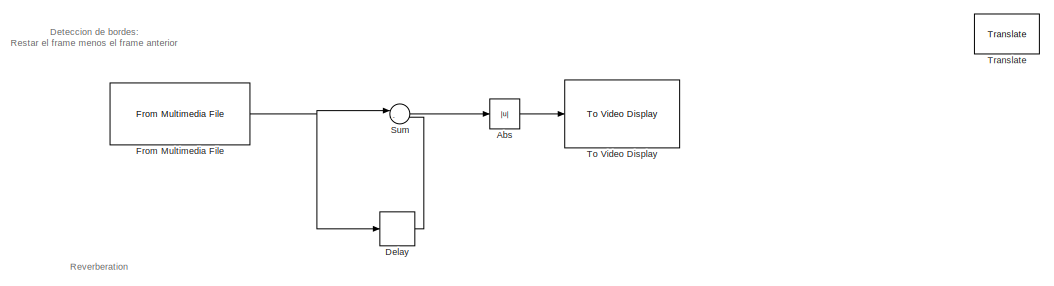
[diagram: root canvas - part 1/2, top center region]
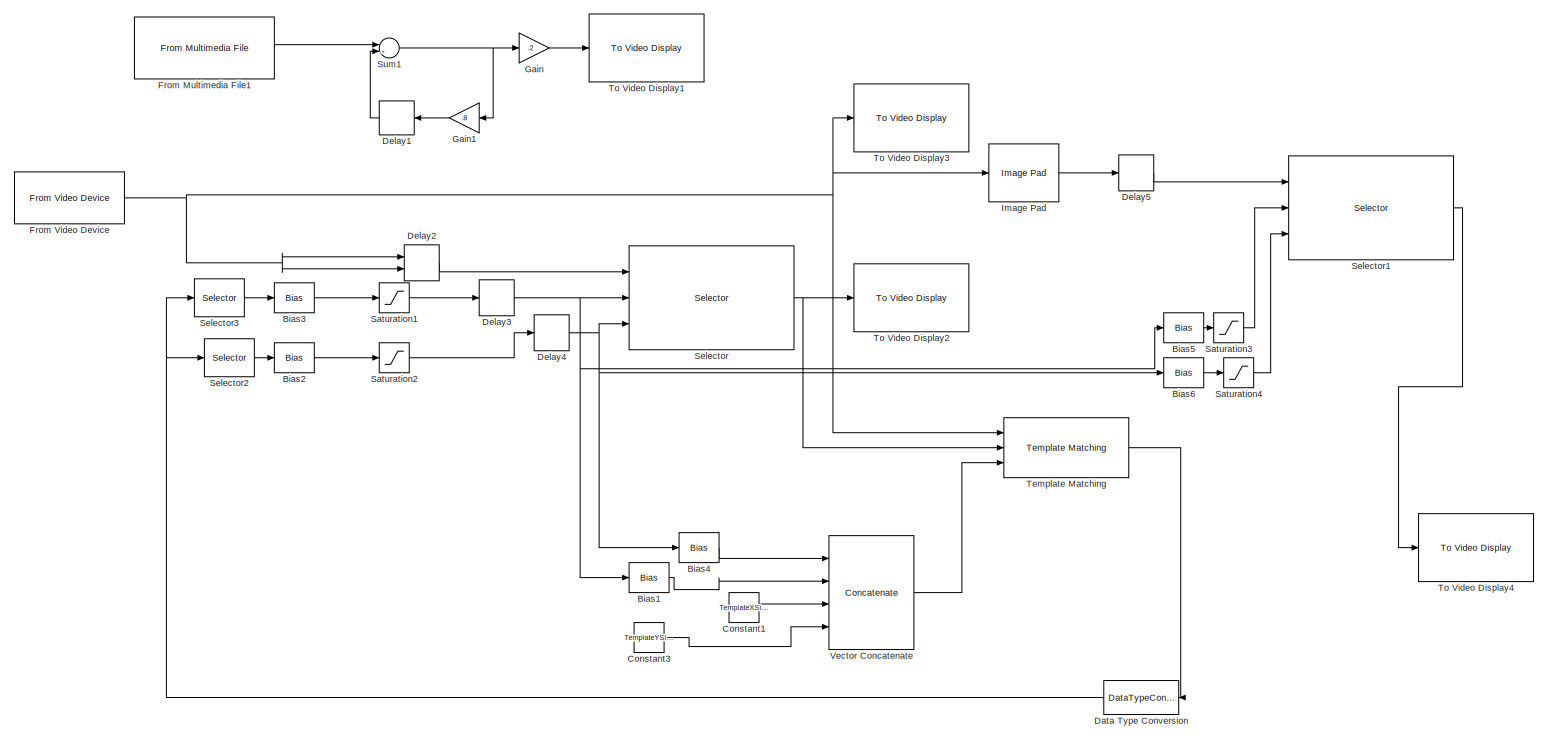
[diagram: root canvas - part 2/2, full width, middle band]
MODEL slx_bb39cacca3c3
KIND model
CONFIG InitFcn = webcam
BLOCK [Abs] Abs
  Commented = on
  SaturateOnIntegerOverflow = off
BLOCK [Bias] Bias1
  Bias = -SearchEx/2
  SaturateOnIntegerOverflow = off
BLOCK [Bias] Bias2
  Bias = -TemplateXSize/2+1
BLOCK [Bias] Bias3
  Bias = -TemplateYSize/2+1
  SaturateOnIntegerOverflow = off
BLOCK [Bias] Bias4
  Bias = -SearchEx/2
  SaturateOnIntegerOverflow = off
BLOCK [Bias] Bias5
  SaturateOnIntegerOverflow = off
BLOCK [Bias] Bias6
  SaturateOnIntegerOverflow = off
BLOCK [Constant] Constant1
  Value = TemplateXSize+SearchEx
BLOCK [Constant] Constant3
  Value = TemplateYSize+SearchEx
BLOCK [DataTypeConversion] Data Type Conversion
  RndMeth = Floor
  SaturateOnIntegerOverflow = off
BLOCK [Delay] Delay
  Commented = on
  DelayLength = 1
  InitialCondition = 0
  InputPortMap = u0
  Ports = [1, 1]
BLOCK [Delay] Delay1
  Commented = on
  DelayLength = 1
  InitialCondition = 0
  InputPortMap = u0
  Ports = [1, 1]
BLOCK [Delay] Delay2
  DelayLength = 1
  InitialCondition = 0
  InitialConditionSource = Input port
  InputPortMap = u0,p4
  Ports = [2, 1]
BLOCK [Delay] Delay3
  DelayLength = 1
  InitialCondition = PosYIn
  InputPortMap = u0
  Ports = [1, 1]
BLOCK [Delay] Delay4
  DelayLength = 1
  InitialCondition = PosXIn
  InputPortMap = u0
  Ports = [1, 1]
BLOCK [Delay] Delay5
  DelayLength = 1
  InitialCondition = 0
  InputPortMap = u0
  Ports = [1, 1]
BLOCK [Reference] From Multimedia File  REF=dspvision/From Multimedia File
  Commented = on
  Ports = [0, 1]
  SourceBlock = dspvision/From Multimedia File
  SourceType = From Multimedia File
  audioDataType = int16
  audioFrameSize = 1024
  colorVideoFormat = One multidimensional signal
  computeAudioFrameSize = off
  dataOrg = Column-major
  fourcc = Intensity
  inheritSampleTime = on
  inputFilename = <path>
  isIntensityVideo = off
  loop = on
  noAudioOutput = off
  numPlays = inf
  outSamplingMode = Sample based
  outputEOF = off
  outputStreams = Video only
  userDefinedSampleTime = 1/30
  videoDataType = single
BLOCK [Reference] From Multimedia File1  REF=dspvision/From Multimedia File
  Commented = on
  Ports = [0, 1]
  SourceBlock = dspvision/From Multimedia File
  SourceType = From Multimedia File
  audioDataType = int16
  audioFrameSize = 1024
  colorVideoFormat = One multidimensional signal
  computeAudioFrameSize = off
  dataOrg = Column-major
  fourcc = Intensity
  inheritSampleTime = on
  inputFilename = <path>
  isIntensityVideo = off
  loop = on
  noAudioOutput = off
  numPlays = inf
  outSamplingMode = Sample based
  outputEOF = off
  outputStreams = Video only
  userDefinedSampleTime = 1/30
  videoDataType = single
BLOCK [Reference] From Video Device  REF=imaqlib/From Video Device
  AllMetadata = IsPositionTracked;IsSkeletonTracked;JointDepthIndices;JointImageIndices;JointTrackingState;JointWorldCoordinates;PositionDepthIndices;PositionImageIndices;PositionWorldCoordinates;SegmentationData;SkeletonTrackingID
  BayerSensorAlignment = grbg
  BlockHandle = 1921.0006
  CanDoHWTrigger = no
  DataType = single
  DevXMLPath = <path>
  Device = winvideo 1 (Integrated Webcam)
  DeviceMenu = winvideo 1 (Integrated Webcam)
  EnableHWTrigger = off
  EngLibPath = C:\Program Files (x86)\MATLAB\R2014b\toolbox\imaq\imaqblks\imaqmex\win32
  EngXMLPath = C:\Program Files (x86)\MATLAB\R2014b\toolbox\imaq\imaq\private
  ObjConstructor = videoinput('winvideo', 1)
  OutputPortsMode = One multidimensional signal
  Ports = [0, 1]
  ROIColumn = 0
  ROIHeight = 480
  ROIPosition = [0 0 480 640]
  ROIRow = 0
  ROIWidth = 640
  ReturnedColorSpace = grayscale
  SampleTime = 1/30
  SourceBlock = imaqlib/From Video Device
  SourceType = From Video Device
  TriggerConfiguration = none/none
  UserDataPersistent = on
  VideoFormat = YUY2_640x480
  VideoFormatMenu = YUY2_640x480
  VideoSource = input1
BLOCK [Gain] Gain
  Commented = on
  Gain = .2
  OutDataTypeStr = Inherit: Inherit via internal rule
  ParamDataTypeStr = Inherit: Inherit via internal rule
  SaturateOnIntegerOverflow = off
BLOCK [Gain] Gain1
  Commented = on
  Gain = .8
  OutDataTypeStr = Inherit: Inherit via internal rule
  ParamDataTypeStr = Inherit: Inherit via internal rule
  SaturateOnIntegerOverflow = off
BLOCK [Reference] Image Pad  REF=visionutilities/Image Pad
  Ports = [1, 1]
  SourceBlock = visionutilities/Image Pad
  SourceType = Image Pad
  colDirection = Both top and bottom
  colSize = 200
  method = Constant
  outColSize = 10
  outColsMode = User-specified
  outRowSize = 12
  outRowsMode = User-specified
  rowDirection = Both left and right
  rowSize = 200
  spec = Pad size
  trunc_flag = None
  valSrc = Specify via dialog
  value = 0.5
BLOCK [Saturate] Saturation1
  InputPortMap = u0
  LowerLimit = 1
  Ports = [1, 1]
  UpperLimit = 429
BLOCK [Saturate] Saturation2
  InputPortMap = u0
  LowerLimit = 1
  Ports = [1, 1]
  UpperLimit = 589
BLOCK [Saturate] Saturation3
  InputPortMap = u0
  LowerLimit = 1
  Ports = [1, 1]
  UpperLimit = 300
BLOCK [Saturate] Saturation4
  InputPortMap = u0
  LowerLimit = 1
  Ports = [1, 1]
  UpperLimit = 400
BLOCK [Selector] Selector
  IndexOptions = Starting index (port),Starting index (port)
  Indices = [1 3],1
  InputPortWidth = 3
  NumberOfDimensions = 2
  OutputSizes = TemplateYSize,TemplateXSize
  Ports = [3, 1]
BLOCK [Selector] Selector1
  IndexOptions = Starting index (port),Starting index (port)
  Indices = [1 3],1
  InputPortWidth = 3
  NumberOfDimensions = 2
  OutputSizes = 300,500
  Ports = [3, 1]
BLOCK [Selector] Selector2
  Indices = [1]
  InputPortWidth = 2
  Ports = [1, 1]
BLOCK [Selector] Selector3
  Indices = [2]
  InputPortWidth = 2
  Ports = [1, 1]
BLOCK [Sum] Sum
  Commented = on
  IconShape = round
  InputSameDT = off
  Inputs = |-+
  OutDataTypeStr = Inherit: Inherit via internal rule
  Ports = [2, 1]
  SaturateOnIntegerOverflow = off
BLOCK [Sum] Sum1
  Commented = on
  IconShape = round
  InputSameDT = off
  Inputs = |++
  OutDataTypeStr = Inherit: Inherit via internal rule
  Ports = [2, 1]
  SaturateOnIntegerOverflow = off
BLOCK [Reference] Template Matching  REF=visionanalysis/Template Matching
  LockScale = off
  Ports = [3, 1]
  SourceBlock = visionanalysis/Template Matching
  SourceType = Template Matching
  accumFracLength = 0
  accumMode = Binary point scaling
  accumWordLength = 32
  method = Exhaustive
  metric = Sum of absolute differences
  nMetric = off
  nSize = 3
  output = Best match location
  outputFracLength = 0
  outputMode = Same as first input
  outputWordLength = 32
  overflowMode = off
  prodOutputFracLength = 0
  prodOutputMode = Binary point scaling
  prodOutputWordLength = 32
  roi = on
  roiValid = off
  roundingMode = Floor
BLOCK [Reference] To Video Display  REF=visionsinks/To Video Display
  Commented = on
  OutputDevice = On-screen video monitor
  Ports = [1]
  SourceBlock = visionsinks/To Video Display
  SourceType = To Video Display
  dataOrg = Column-major
  fullScreen = off
  imagePorts = One multidimensional signal
  inputColorFormat = RGB
  inputType = Obsolete
  isWindowOpen = off
  openAtMdlStart = on
  saveWindowSize = off
  videoWindowHeight = 240
  videoWindowWidth = 320
  videoWindowX = 467
  videoWindowY = 194
BLOCK [Reference] To Video Display1  REF=visionsinks/To Video Display
  Commented = on
  OutputDevice = On-screen video monitor
  Ports = [1]
  SourceBlock = visionsinks/To Video Display
  SourceType = To Video Display
  dataOrg = Column-major
  fullScreen = off
  imagePorts = One multidimensional signal
  inputColorFormat = RGB
  inputType = Obsolete
  isWindowOpen = off
  openAtMdlStart = on
  saveWindowSize = off
  videoWindowHeight = 240
  videoWindowWidth = 320
  videoWindowX = 66
  videoWindowY = 267
BLOCK [Reference] To Video Display2  REF=visionsinks/To Video Display
  OutputDevice = On-screen video monitor
  Ports = [1]
  SourceBlock = visionsinks/To Video Display
  SourceType = To Video Display
  dataOrg = Column-major
  fullScreen = off
  imagePorts = One multidimensional signal
  inputColorFormat = RGB
  inputType = Obsolete
  isWindowOpen = on
  openAtMdlStart = on
  saveWindowSize = off
  videoWindowHeight = 50
  videoWindowWidth = 120
  videoWindowX = 905
  videoWindowY = 512
BLOCK [Reference] To Video Display3  REF=visionsinks/To Video Display
  OutputDevice = On-screen video monitor
  Ports = [1]
  SourceBlock = visionsinks/To Video Display
  SourceType = To Video Display
  dataOrg = Column-major
  fullScreen = off
  imagePorts = One multidimensional signal
  inputColorFormat = RGB
  inputType = Obsolete
  isWindowOpen = on
  openAtMdlStart = on
  saveWindowSize = off
  videoWindowHeight = 480
  videoWindowWidth = 640
  videoWindowX = 82
  videoWindowY = 45
BLOCK [Reference] To Video Display4  REF=visionsinks/To Video Display
  OutputDevice = On-screen video monitor
  Ports = [1]
  SourceBlock = visionsinks/To Video Display
  SourceType = To Video Display
  dataOrg = Column-major
  fullScreen = off
  imagePorts = One multidimensional signal
  inputColorFormat = RGB
  inputType = Obsolete
  isWindowOpen = on
  openAtMdlStart = on
  saveWindowSize = off
  videoWindowHeight = 300
  videoWindowWidth = 500
  videoWindowX = 756
  videoWindowY = 42
BLOCK [Reference] Translate  REF=visiongeotforms/Translate
  Commented = on
  LockScale = off
  Ports = [1, 1]
  SourceBlock = visiongeotforms/Translate
  SourceType = Translate
  accumFracLength = 10
  accumMode = Same as product output
  accumWordLength = 32
  fillVal = 0
  firstCoeffFracLength = 6
  firstCoeffMode = Same word length as input
  firstCoeffWordLength = 16
  interpMethod = Bilinear
  maxOffset = [8 10]
  outSizeT = Full
  outputFracLength = 10
  outputMode = Same as first input
  outputWordLength = 32
  overflowMode = on
  prodOutputFracLength = 10
  prodOutputMode = Binary point scaling
  prodOutputWordLength = 32
  roundingMode = Nearest
  src_trans = Specify via dialog
  translation = [1.5  2.3]
BLOCK [Concatenate] Vector Concatenate
  NumInputs = 4
  Ports = [4, 1]
ANNOTATION (root): Deteccion de bordes: Restar el frame menos el frame anterior
ANNOTATION (root): Reverberation
LINE Abs:1 -> To Video Display:1
LINE Bias1:1 -> Vector Concatenate:2
LINE Bias2:1 -> Saturation2:1
LINE Bias3:1 -> Saturation1:1
LINE Bias4:1 -> Vector Concatenate:1
LINE Bias5:1 -> Saturation3:1
LINE Bias6:1 -> Saturation4:1
LINE Constant1:1 -> Vector Concatenate:3
LINE Constant3:1 -> Vector Concatenate:4
NET Data Type Conversion:1 -> Selector2:1, Selector3:1
LINE Delay1:1 -> Sum1:2
LINE Delay2:1 -> Selector:1
NET Delay3:1 -> Bias1:1, Bias5:1, Selector:2
NET Delay4:1 -> Bias4:1, Bias6:1, Selector:3
LINE Delay5:1 -> Selector1:1
LINE Delay:1 -> Sum:2
LINE From Multimedia File1:1 -> Sum1:1
NET From Multimedia File:1 -> Delay:1, Sum:1
NET From Video Device:1 -> Delay2:1, Delay2:2, Image Pad:1, Template Matching:1, To Video Display3:1
LINE Gain1:1 -> Delay1:1
LINE Gain:1 -> To Video Display1:1
LINE Image Pad:1 -> Delay5:1
LINE Saturation1:1 -> Delay3:1
LINE Saturation2:1 -> Delay4:1
LINE Saturation3:1 -> Selector1:2
LINE Saturation4:1 -> Selector1:3
LINE Selector1:1 -> To Video Display4:1
LINE Selector2:1 -> Bias2:1
LINE Selector3:1 -> Bias3:1
NET Selector:1 -> Template Matching:2, To Video Display2:1
NET Sum1:1 -> Gain1:1, Gain:1
LINE Sum:1 -> Abs:1
LINE Template Matching:1 -> Data Type Conversion:1
LINE Vector Concatenate:1 -> Template Matching:3
note: NET lines group one-source signal fan-out (src -> all destinations, sorted); 1:1 wires keep LINE
note: 3 file-system paths scrubbed to <path> (not preserved elsewhere — flat text is the only slx artifact)
